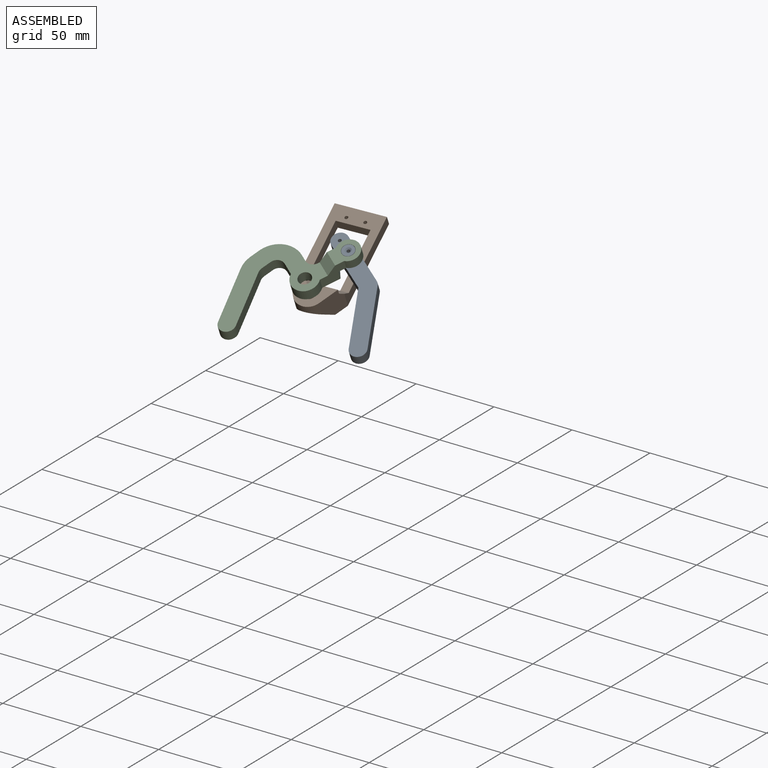
[diagram: assembled view]
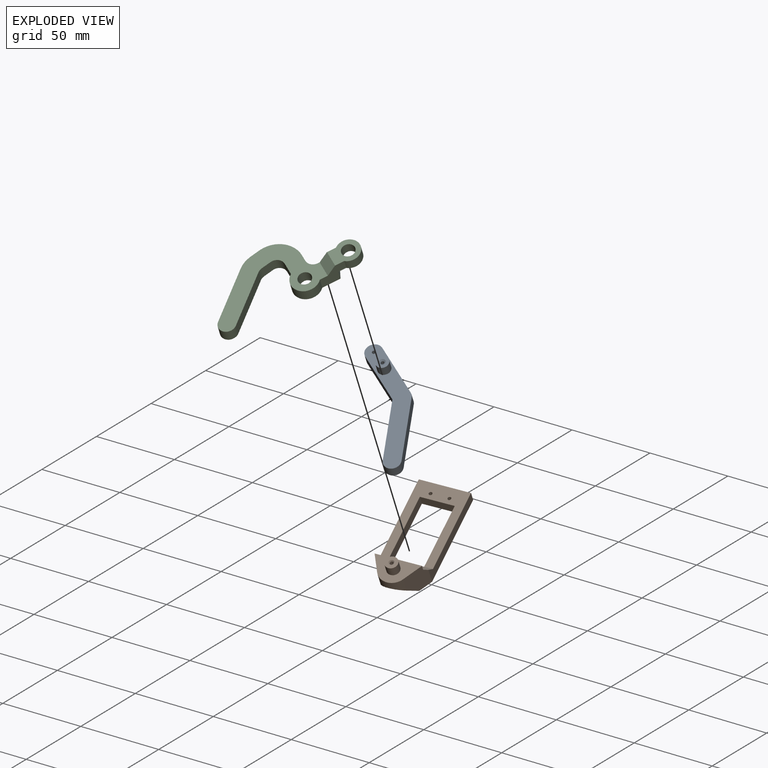
[diagram: exploded view]
GUIDED TOUR — MATED ASSEMBLY (Onshape document b7c5f8db458bb0e5b58fd531, AutoMate assembly b7c5f8db458bb0e5b58fd531_290e2ff97d36b5c938952f43_772717d020782515862390be_default)

This assembly has 3 components, labeled P0..P2 below (a component is one placed occurrence of a part; the same part can appear more than once), held together by 2 mates. A mate is a constraint between two components; its type names the relative motion it leaves free:
  REVOLUTE — leaves rotation about the listed axis free (a hinge).
Axis/direction vectors are unit vectors and 'through' points are millimeter coordinates, both in the assembly's world frame.

MATES
  1. REVOLUTE "Revolute 1": P2 <-> P0, axis (0.138, -0.500, 0.855) through (-53.87, 58.72, -37.32) mm
  2. REVOLUTE "Revolute 2": P1 <-> P2, axis (-0.138, 0.500, -0.855) through (-70.14, 43.44, -54.76) mm

ASSEMBLY ORDER
  1. P2 — the base component [order heuristic]
  2. P0 — core [order heuristic]
  3. P1 [order verified]
Order-tag legend:
  [order verified] — this step's position reverses a verified removal order: the component was checked to insert without passing through the ones already placed.
  [order heuristic] — the first 2 components form the assembly's core: parts whose collision-free extraction could not be verified, listed in mate-graph order.

Of the 3 components, 1 carries the full construction recipe — the FeatureScript program that regenerates the part's solid from scratch; the rest are supplied as boundary geometry only.
Each toured component is shown spotlighted twice — in the assembled view, then in the exploded view, where a leader line traces a displaced component back to its assembled socket (saturated green if recipe-attached, orange if geometry-only; every other component desaturated gray) — followed by its recipe or geometry summary and the mates that hold it.
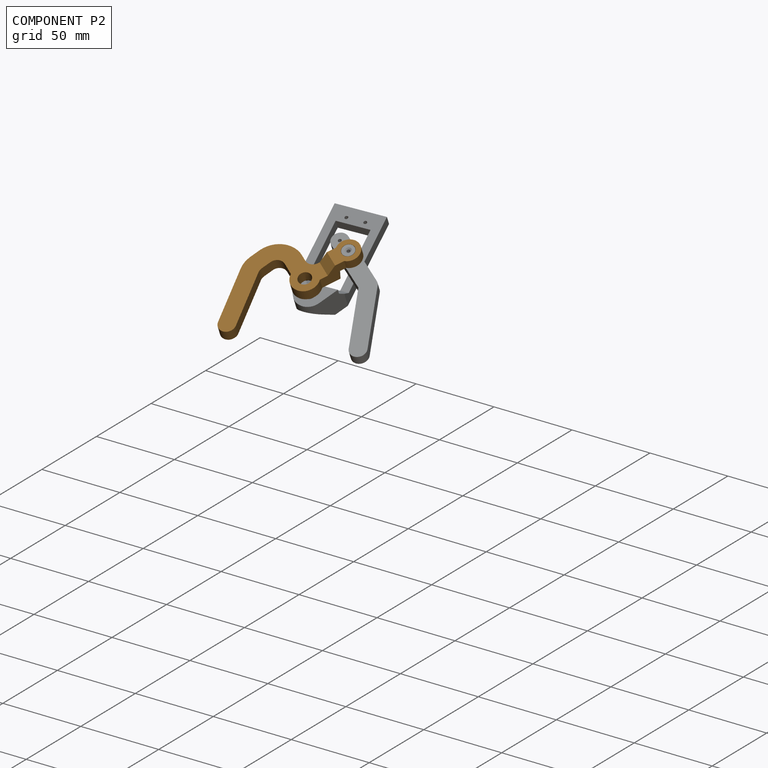
[diagram: component P2 — assembled]
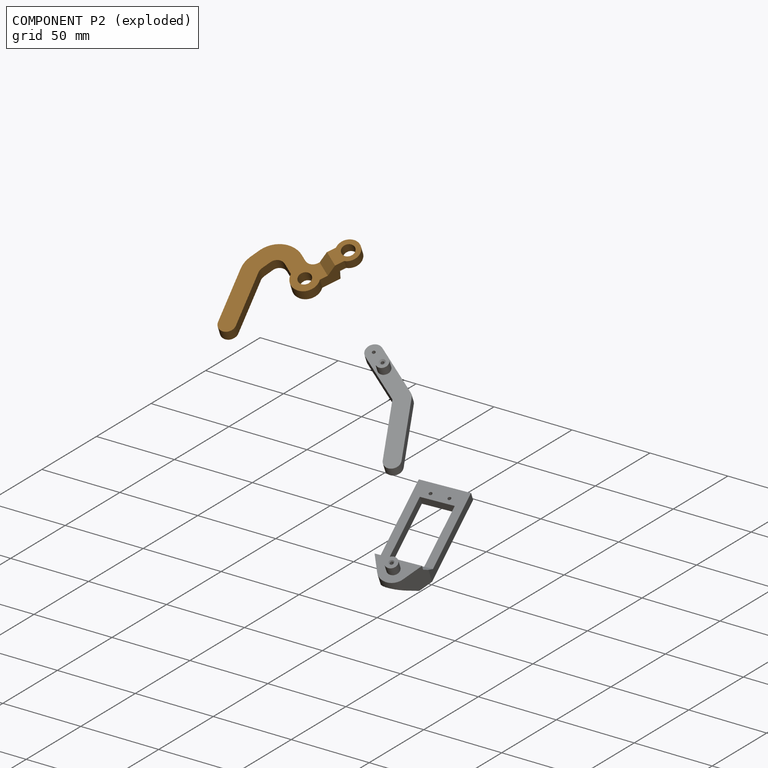
[diagram: component P2 — exploded]
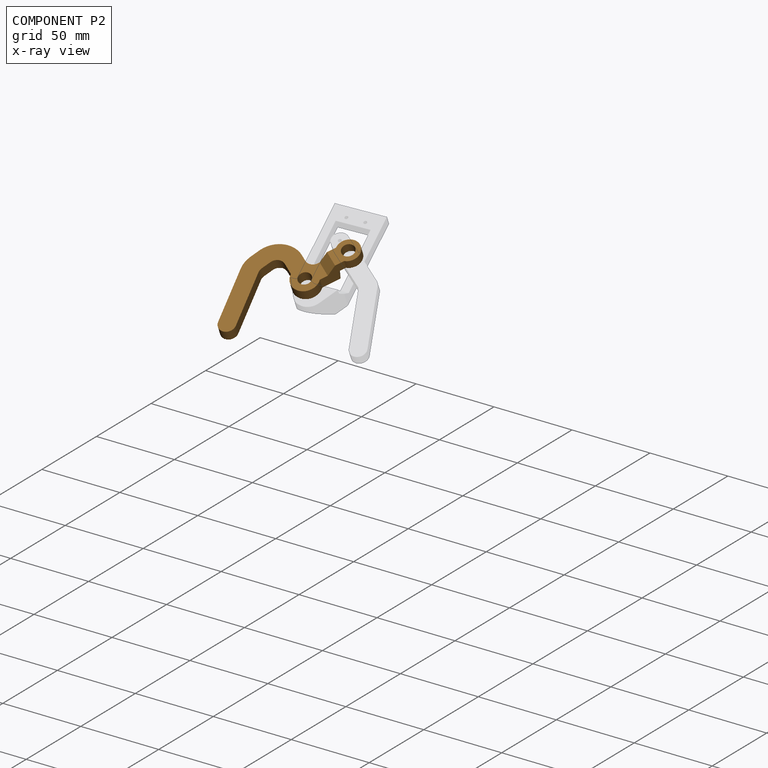
[diagram: component P2 — x-ray view]
COMPONENT P2 — geometry summary (no construction recipe available for this part):
  bounding box: 86.6 x 38.7 x 12.7 mm
  B-rep topology: 1 solid, 27 faces, 154 edges
  volume: 8707 mm^3 (20% of its bounding box)
Held by: REVOLUTE mate "Revolute 1" to P0; REVOLUTE mate "Revolute 2" to P1.
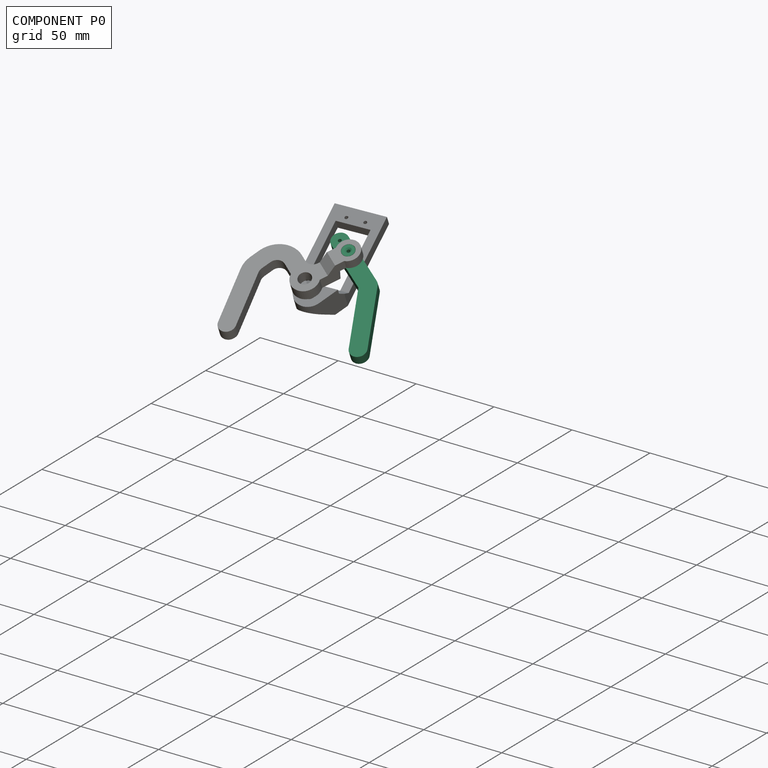
[diagram: component P0 — assembled]
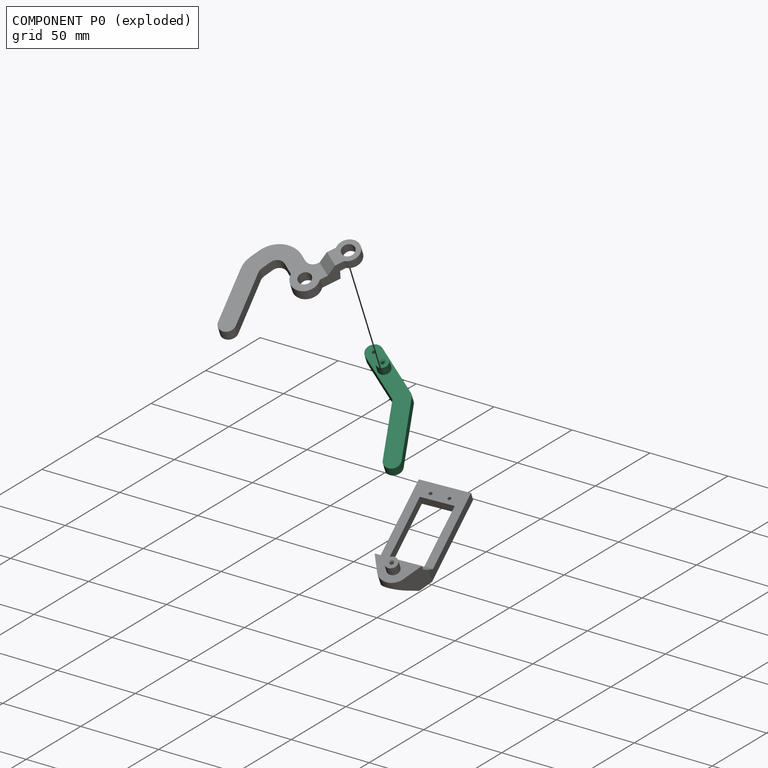
[diagram: component P0 — exploded]
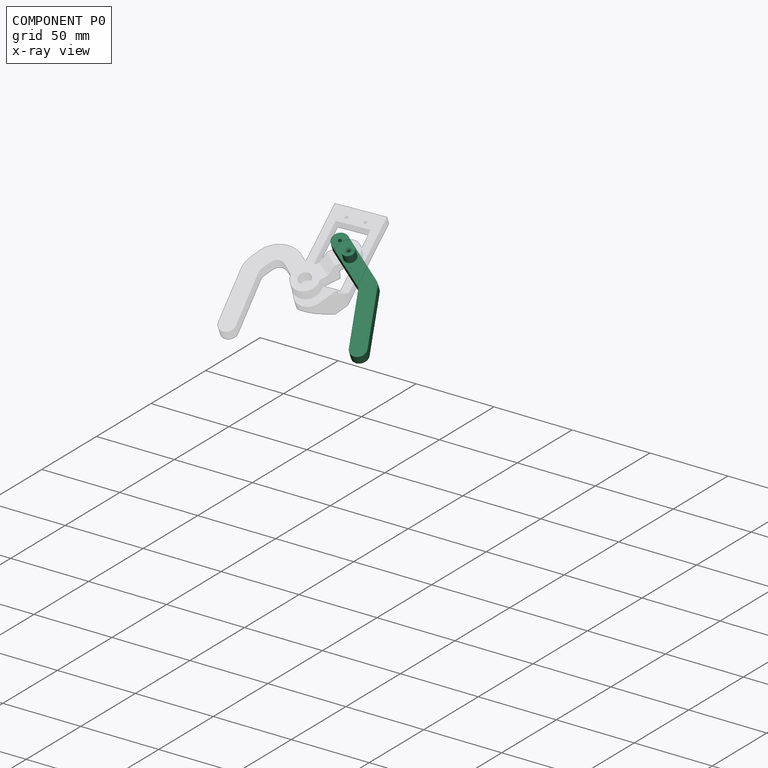
[diagram: component P0 — x-ray view]
COMPONENT P0 — recipe-attached (CADFS 00312244, mesh-verified: the recipe's output STEP matches this component's geometry to below the mesh-comparison resolution (tessellation chordal tolerance ~0.129 mm)).
Held by: REVOLUTE mate "Revolute 1" to P2.
Construction recipe (FeatureScript — the CAD program that rebuilds this solid; sketch coordinates are in the units given by the * unit suffixes, e.g. mm):

FeatureScript 1511;
import(path : "onshape/std/geometry.fs", version : "1511.0");
import(path : "onshape/std/common.fs", version : "1511.0");
const mm = millimeter;
const VERTEX = EntityType.VERTEX;
const EDGE = EntityType.EDGE;
const FACE = EntityType.FACE;
const BODY = EntityType.BODY;
function v(x, y){return vector(x, y);}
function OD(order){return orderDisambiguation(order);}
function OSD(set){return originalSetDisambiguation(set);}
function TD(topology){return topologyDisambiguation(topology);}
function TDD(query){return trueDependencyDisambiguation(query);}
function sQuery(a, b, c) {return sketchEntityQuery(a, b, c);}

annotation { "Feature Type Name" : "Feature", "Feature Type Description" : "" }
export const myFeature = defineFeature(function(context is Context, id is Id, definition is map)
    precondition{}
    {
        {
            var Q0;
            Q0=qCreatedBy(makeId("Top.planeOp"),FACE);
            var sketch = newSketch(context, id + "F0", { "sketchPlane" : qUnion([Q0])});
            skLineSegment(sketch, "E0", {"start": v(0, -39.62) * mm, "end": v(0, -26.92) * mm});
            skLineSegment(sketch, "E1", {"start": v(0, -26.92) * mm, "end": v(0, -5.33) * mm});
            skLineSegment(sketch, "E2", {"start": v(0, -5.33) * mm, "end": v(22.73, 28.36) * mm});
            skArc(sketch, "E3.0.startCap", {"start": v(4.21, -8.17) * mm, "mid": v(-2.84, -9.54) * mm, "end": v(-4.21, -2.49) * mm});
            skArc(sketch, "E3.0.endCap", {"start": v(18.51, 31.2) * mm, "mid": v(25.57, 32.58) * mm, "end": v(26.94, 25.52) * mm});
            skLineSegment(sketch, "E3.0.left", {"start": v(-4.21, -2.49) * mm, "end": v(18.51, 31.2) * mm});
            skLineSegment(sketch, "E3.0.right", {"start": v(4.21, -8.17) * mm, "end": v(26.94, 25.52) * mm});
            skArc(sketch, "E3.1.startCap", {"start": v(5.08, -26.92) * mm, "mid": v(0, -32) * mm, "end": v(-5.08, -26.92) * mm});
            skArc(sketch, "E3.1.endCap", {"start": v(-5.08, -5.33) * mm, "mid": v(0, -0.25) * mm, "end": v(5.08, -5.33) * mm});
            skLineSegment(sketch, "E3.1.left", {"start": v(-5.08, -26.92) * mm, "end": v(-5.08, -5.33) * mm});
            skLineSegment(sketch, "E3.1.right", {"start": v(5.08, -26.92) * mm, "end": v(5.08, -5.33) * mm});
            skArc(sketch, "E3.2.startCap", {"start": v(5.08, -39.62) * mm, "mid": v(0, -44.7) * mm, "end": v(-5.08, -39.62) * mm});
            skArc(sketch, "E3.2.endCap", {"start": v(-5.08, -26.92) * mm, "mid": v(0, -21.84) * mm, "end": v(5.08, -26.92) * mm});
            skLineSegment(sketch, "E3.2.left", {"start": v(-5.08, -39.62) * mm, "end": v(-5.08, -26.92) * mm});
            skLineSegment(sketch, "E3.2.right", {"start": v(5.08, -39.62) * mm, "end": v(5.08, -26.92) * mm});
            skSolve(sketch);
        }
        {
            var Q0;
            Q0 = qSketchRegion(id + "F0", true);
            extrude(context, id + "F1", {"entities" : qUnion([Q0]), "depth" : 6.35 * mm});
        }
        {
            var Q0;
            Q0=makeQuery(id+"F1.opExtrude","CAP_FACE",FACE,{"disambiguationData":[OSD([sQuery(id+"F0.wireOp",EDGE,"E3.0.endCap"),sQuery(id+"F0.wireOp",EDGE,"E3.0.left"),sQuery(id+"F0.wireOp",EDGE,"E3.0.right"),sQuery(id+"F0.wireOp",EDGE,"E3.1.endCap"),sQuery(id+"F0.wireOp",EDGE,"E3.1.left"),sQuery(id+"F0.wireOp",EDGE,"E3.1.right"),sQuery(id+"F0.wireOp",EDGE,"E3.2.startCap"),sQuery(id+"F0.wireOp",EDGE,"E3.2.left"),sQuery(id+"F0.wireOp",EDGE,"E3.2.right")])],"isStart":false});
            var sketch = newSketch(context, id + "F2", { "sketchPlane" : qUnion([Q0])});
            skCircle(sketch, "E4", {"center": v(0, -26.92) * mm, "radius": 3.81 * mm});
            skSolve(sketch);
        }
        {
            var Q0;
            Q0 = qSketchRegion(id + "F2", true);
            extrude(context, id + "F3", {"entities" : qUnion([Q0]), "operationType" : NewBodyOperationType.ADD, "depth" : 6.35 * mm});
        }
        {
            var Q0;
            Q0=makeQuery(id+"F3.opExtrude","CAP_FACE",FACE,{"disambiguationData":[OSD([sQuery(id+"F2.wireOp",EDGE,"E4")])],"isStart":false});
            var sketch = newSketch(context, id + "F4", { "sketchPlane" : qUnion([Q0])});
            skPoint(sketch, "E5", {"position": v(0, -26.92) * mm});
            skSolve(sketch);
        }
        {
            var Q0;
            Q0=sQuery(id+"F4.wireOp",VERTEX,"E5");
            var Q1;
            Q1=makeQuery(id+"F1.opExtrude","SWEPT_BODY",BODY,{"disambiguationData":[OSD([sQuery(id+"F0.wireOp",EDGE,"E3.0.endCap"),sQuery(id+"F0.wireOp",EDGE,"E3.0.left"),sQuery(id+"F0.wireOp",EDGE,"E3.0.right"),sQuery(id+"F0.wireOp",EDGE,"E3.1.endCap"),sQuery(id+"F0.wireOp",EDGE,"E3.1.left"),sQuery(id+"F0.wireOp",EDGE,"E3.1.right"),sQuery(id+"F0.wireOp",EDGE,"E3.2.startCap"),sQuery(id+"F0.wireOp",EDGE,"E3.2.left"),sQuery(id+"F0.wireOp",EDGE,"E3.2.right")])]});
            hole(context, id + "F5", {"style" : HoleStyle.C_SINK, "endStyle" : HoleEndStyle.THROUGH, "holeDiameter" : 2.03 * mm, "cSinkDiameter" : 3.8 * mm, "cSinkAngle" : 100 * degree, "tappedDepth" : 12.7 * mm, "tapClearance" : 3, "startFromSketch" : true, "locations" : qUnion([Q0]), "scope" : qUnion([Q1])});
        }
        {
            var Q0;
            Q0=makeQuery(id+"F1.opExtrude","CAP_FACE",FACE,{"disambiguationData":[OSD([sQuery(id+"F0.wireOp",EDGE,"E3.0.endCap"),sQuery(id+"F0.wireOp",EDGE,"E3.0.left"),sQuery(id+"F0.wireOp",EDGE,"E3.0.right"),sQuery(id+"F0.wireOp",EDGE,"E3.1.endCap"),sQuery(id+"F0.wireOp",EDGE,"E3.1.left"),sQuery(id+"F0.wireOp",EDGE,"E3.1.right"),sQuery(id+"F0.wireOp",EDGE,"E3.2.startCap"),sQuery(id+"F0.wireOp",EDGE,"E3.2.left"),sQuery(id+"F0.wireOp",EDGE,"E3.2.right")])],"isStart":false});
            var sketch = newSketch(context, id + "F6", { "sketchPlane" : qUnion([Q0])});
            skPoint(sketch, "E6", {"position": v(0, -39.62) * mm});
            skSolve(sketch);
        }
        {
            var Q0;
            Q0=sQuery(id+"F6.wireOp",VERTEX,"E6");
            var Q1;
            Q1=makeQuery(id+"F1.opExtrude","SWEPT_BODY",BODY,{"disambiguationData":[OSD([sQuery(id+"F0.wireOp",EDGE,"E3.0.endCap"),sQuery(id+"F0.wireOp",EDGE,"E3.0.left"),sQuery(id+"F0.wireOp",EDGE,"E3.0.right"),sQuery(id+"F0.wireOp",EDGE,"E3.1.endCap"),sQuery(id+"F0.wireOp",EDGE,"E3.1.left"),sQuery(id+"F0.wireOp",EDGE,"E3.1.right"),sQuery(id+"F0.wireOp",EDGE,"E3.2.startCap"),sQuery(id+"F0.wireOp",EDGE,"E3.2.left"),sQuery(id+"F0.wireOp",EDGE,"E3.2.right")])]});
            hole(context, id + "F7", {"style" : HoleStyle.SIMPLE, "endStyle" : HoleEndStyle.THROUGH, "holeDiameter" : 2.03 * mm, "tappedDepth" : 12.7 * mm, "tapClearance" : 3, "startFromSketch" : true, "locations" : qUnion([Q0]), "scope" : qUnion([Q1])});
        }
    });
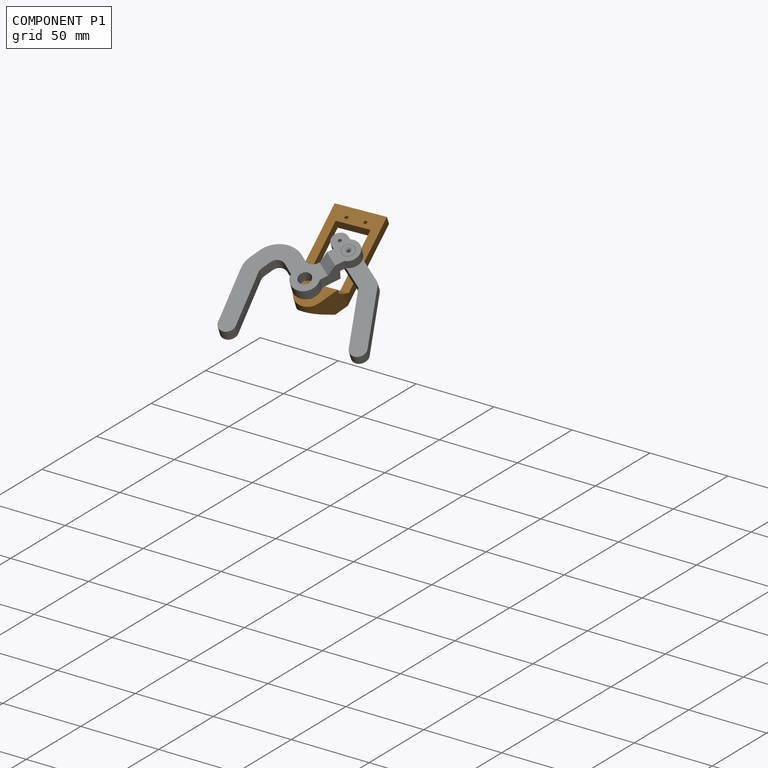
[diagram: component P1 — assembled]
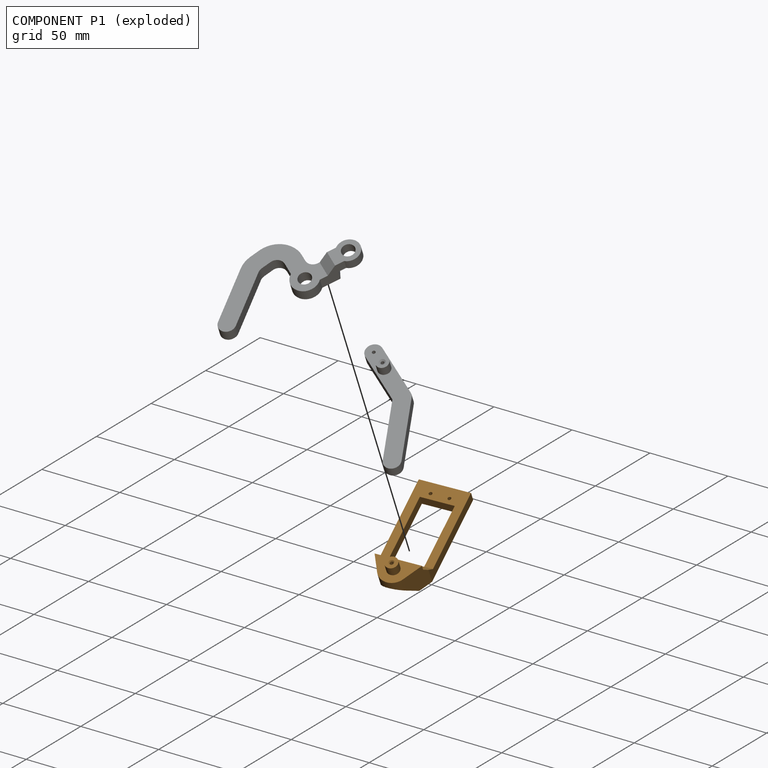
[diagram: component P1 — exploded]
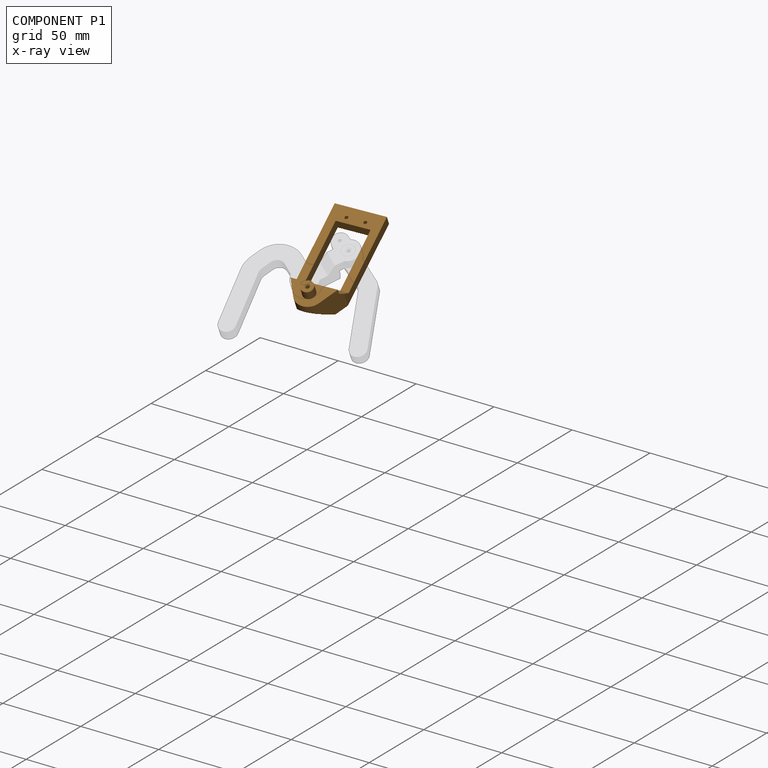
[diagram: component P1 — x-ray view]
COMPONENT P1 — geometry summary (no construction recipe available for this part):
  bounding box: 72.8 x 31.0 x 24.4 mm
  B-rep topology: 1 solid, 24 faces, 136 edges
  volume: 10676 mm^3 (19% of its bounding box)
  symmetry: mirror-symmetric across its x mid-plane
Held by: REVOLUTE mate "Revolute 2" to P2.
PROVENANCE & LICENSES
Assembly (occurrences, transforms, mates, per-part STEP geometry): AutoMate dataset, Zenodo record 7776208, CC0.
Construction recipes: CADFS (HuggingFace VladPyatov/CADFS, CC-BY-4.0, layered over the ABC dataset), FeatureScript reconstruction programs keyed by ABC model id.
Join: ABC meta listings map ABC model id -> Onshape documentId; within a shared document, parts are matched by geometric signature (bounding-box dims + volume at 0.1% relative tolerance, exact B-rep face/solid counts).
Verification: 1 of this assembly's 3 components carries a recipe attachment, and every attachment is mesh-verified: the CADFS STEP and the AutoMate member STEP were compared as meshes in their shared local frame (symmetric sampled-point-to-mesh distance); worst across the 1 attachment: below the mesh-comparison resolution (tessellation chordal tolerance ~0.129 mm) on a 86 mm part.
Renders: orthographic iso camera (az 35 / el 25); the floor grid conveys scale (grid pitch printed in each image; no ruler). In the exploded view each component is displaced by its stored offset vector: the offsets alone carry the explosion direction (mate normal/axis signs are not orientation cues and do not encode it), and separation distances are assigned per mate-chain, not proportionally to assembly-order depth.
